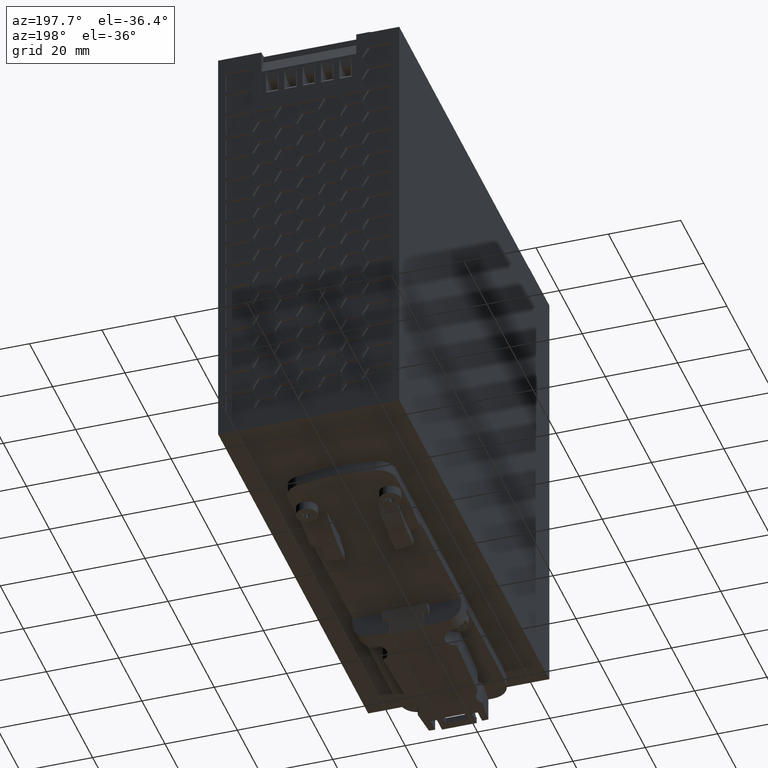
[diagram: clean part render]
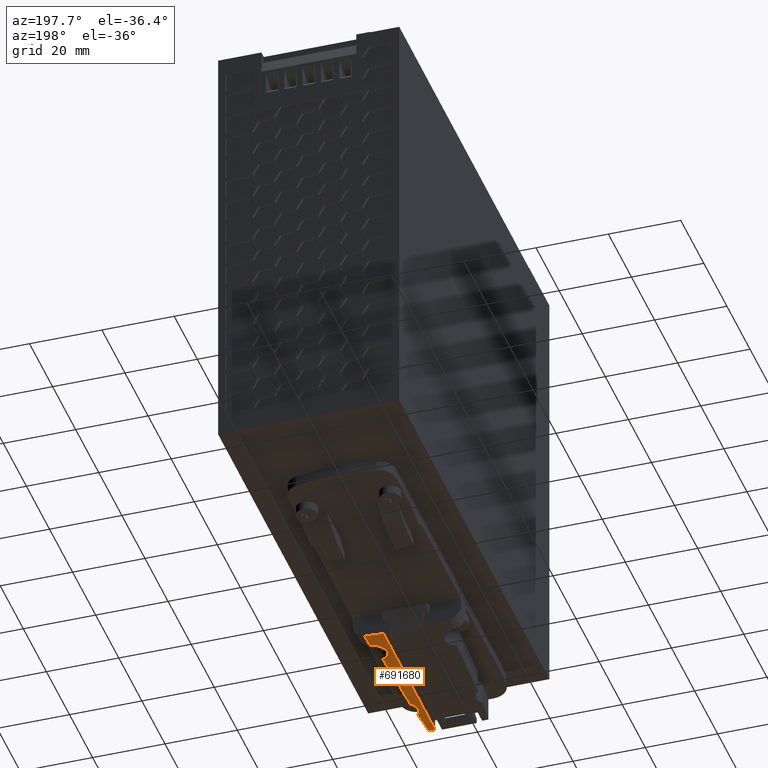
[diagram: same view with one face highlighted and labeled with its STEP entity id]
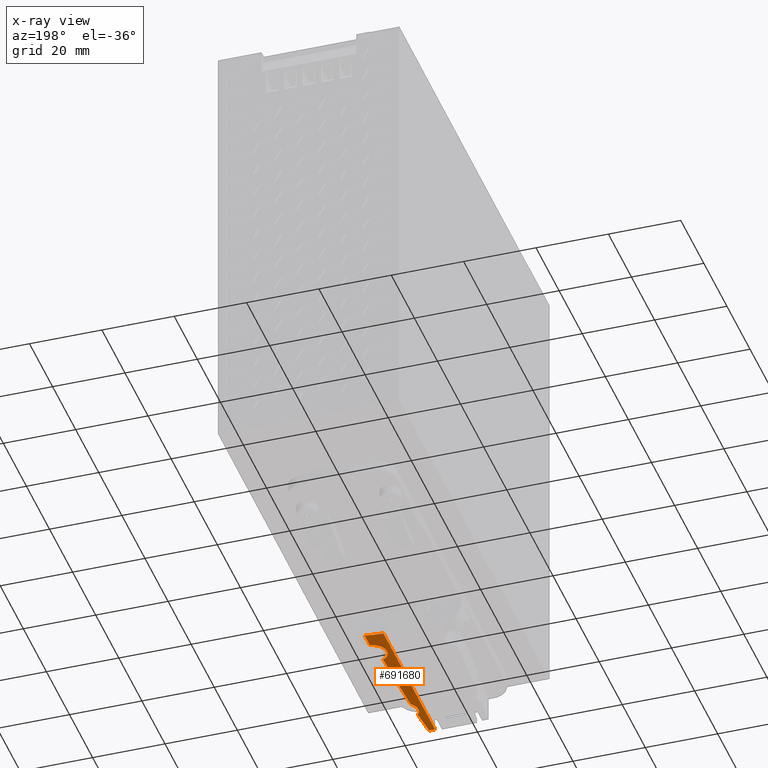
[diagram: x-ray of the same camera — body ghosted, the highlighted face saturated]
A machine part, auxiliary view. The second image highlights one B-rep face of the part: STEP entity #691680.
The next image is the same camera in x-ray: the body ghosted, the highlighted face saturated — about 0% of this face is hidden behind the body in this view.
In plain terms, the highlighted cylindrical surface (partial cylindrical patch) has radius 30 mm, axis along (0, -1, -0).
Its self-contained STEP definition (entity closure, byte-faithful):
#673430=CARTESIAN_POINT('',(17.4402924792435,-9.69999999999984,
84.1510932410561));
#673440=VERTEX_POINT('',#673430);
#673470=CARTESIAN_POINT('',(17.4402924792435,20.3000000000002,
84.1510932410561));
#673480=DIRECTION('',(1.37468202359202E-5,1.32377063662335E-39,
0.999999999905512));
#673490=DIRECTION('',(0.999999999905512,-9.09881806515498E-45,
-1.37468202359202E-5));
#673500=AXIS2_PLACEMENT_3D('',#673470,#673480,#673490);
#673510=CIRCLE('',#673500,30.);
#673520=CARTESIAN_POINT('',(22.6326001710606,-9.24724929377342,
84.1510218633356));
#673530=VERTEX_POINT('',#673520);
#673540=EDGE_CURVE('',#673440,#673530,#673510,.T.);
#689910=CARTESIAN_POINT('',(19.1573927849674,-9.65085447025208,
129.001069640625));
#689920=VERTEX_POINT('',#689910);
#689950=CARTESIAN_POINT('',(17.4409090241311,20.3000000000002,
129.001093236818));
#689960=DIRECTION('',(1.37468202359202E-5,1.32377063662335E-39,
0.999999999905512));
#689970=DIRECTION('',(0.999999999905512,-9.09881806515498E-45,
-1.37468202359202E-5));
#689980=AXIS2_PLACEMENT_3D('',#689950,#689960,#689970);
#689990=CIRCLE('',#689980,30.);
#690000=CARTESIAN_POINT('',(17.4409090241311,-9.69999999999984,
129.001093236818));
#690010=VERTEX_POINT('',#690000);
#690020=EDGE_CURVE('',#690010,#689920,#689990,.T.);
#690280=CARTESIAN_POINT('',(17.4402924792435,20.3000000000002,
84.1510932410561));
#690290=DIRECTION('',(1.37468202359202E-5,1.32377063662335E-39,
0.999999999905512));
#690300=DIRECTION('',(0.999999999905512,-9.09881806515498E-45,
-1.37468202359202E-5));
#690310=AXIS2_PLACEMENT_3D('',#690280,#690290,#690300);
#690320=CYLINDRICAL_SURFACE('',#690310,30.);
#690330=ORIENTED_EDGE('',*,*,#690020,.F.);
#690340=CARTESIAN_POINT('',(-380.259652495898,-3.0999999999999,
88.156560351086));
#690350=DIRECTION('',(9.09881891095558E-45,-1.,1.32377063662335E-39));
#690360=DIRECTION('',(-1.37468202359202E-5,-1.32377063662335E-39,
-0.999999999905512));
#690370=AXIS2_PLACEMENT_3D('',#690340,#690350,#690360);
#690380=CYLINDRICAL_SURFACE('',#690370,401.5);
#690390=CARTESIAN_POINT('',(19.8527982263077,-9.60288102418703,
121.507374090337));
#690400=CARTESIAN_POINT('',(19.8006999194526,-9.6070840116754,
122.132401755246));
#690410=CARTESIAN_POINT('',(19.7471372658763,-9.61126813362171,
122.757304670079));
#690420=CARTESIAN_POINT('',(19.6921111960363,-9.61540975810916,
123.382072692423));
#690430=CARTESIAN_POINT('',(19.6370851261882,-9.61955138259722,
124.006840714859));
#690440=CARTESIAN_POINT('',(19.5805956401027,-9.62365050926288,
124.63147384467));
#690450=CARTESIAN_POINT('',(19.522643760876,-9.62768227136417,
125.255961958914));
#690460=CARTESIAN_POINT('',(19.4646918816423,-9.63171403346595,
125.880450073234));
#690470=CARTESIAN_POINT('',(19.4052776092794,-9.63567843067104,
126.504793172018));
#690480=CARTESIAN_POINT('',(19.3444020593547,-9.63954936686504,
127.128981150951));
#690490=CARTESIAN_POINT('',(19.2835265094321,-9.64342030305891,
127.753169129863));
#690500=CARTESIAN_POINT('',(19.2211896819438,-9.64719777796471,
128.377201989093));
#690510=CARTESIAN_POINT('',(19.1573927849677,-9.65085447025247,
129.001069640621));
#690520=B_SPLINE_CURVE_WITH_KNOTS('',3,(#690390,#690400,#690410,#690420,
#690430,#690440,#690450,#690460,#690470,#690480,#690490,#690500,#690510)
,.UNSPECIFIED.,.F.,.F.,(4,3,3,3,4),(0.,1.88161596020837,3.76319436599583
,5.64471458202427,7.52615607690601),.UNSPECIFIED.);
#690530=SURFACE_CURVE('',#690520,(#690320,#690380),.CURVE_3D.);
#690540=CARTESIAN_POINT('',(19.8527982263082,-9.60288102418034,
121.507374090338));
#690550=VERTEX_POINT('',#690540);
#690560=EDGE_CURVE('',#690550,#689920,#690530,.T.);
#690570=ORIENTED_EDGE('',*,*,#690560,.T.);
#690580=CARTESIAN_POINT('',(22.4407736174793,-3.09999999999985,
119.151024503648));
#690590=DIRECTION('',(9.09881891095558E-45,-1.,1.32377063662335E-39));
#690600=DIRECTION('',(0.999999999905512,-9.09881806515498E-45,
-1.37468202359202E-5));
#690610=AXIS2_PLACEMENT_3D('',#690580,#690590,#690600);
#690620=CYLINDRICAL_SURFACE('',#690610,3.5);
#690630=CARTESIAN_POINT('',(19.8527982263082,-9.60288102418046,
121.507374090338));
#690640=CARTESIAN_POINT('',(19.5331168278246,-9.62866641263855,
121.156268466213));
#690650=CARTESIAN_POINT('',(19.2857561713809,-9.64361997060808,
120.740182141791));
#690660=CARTESIAN_POINT('',(19.1302506474801,-9.65239089170769,
120.286998827789));
#690670=CARTESIAN_POINT('',(18.9758338450306,-9.66110040605012,
119.836988329665));
#690680=CARTESIAN_POINT('',(18.9147408490969,-9.66379053106371,
119.358413646861));
#690690=CARTESIAN_POINT('',(18.9509373216708,-9.66196579864018,
118.884486272886));
#690700=CARTESIAN_POINT('',(18.9873856133439,-9.66012837154111,
118.407261783035));
#690710=CARTESIAN_POINT('',(19.1225138541487,-9.65364315802918,
117.940922780172));
#690720=CARTESIAN_POINT('',(19.3435223739164,-9.63959688932203,
117.520983174648));
#690730=CARTESIAN_POINT('',(19.5665355695714,-9.62542321278367,
117.097234472523));
#690740=CARTESIAN_POINT('',(19.8748473470081,-9.60338606038583,
116.723942419355));
#690750=CARTESIAN_POINT('',(20.2438633892926,-9.56875420484563,
116.426398758835));
#690760=B_SPLINE_CURVE_WITH_KNOTS('',3,(#690630,#690640,#690650,#690660,
#690670,#690680,#690690,#690700,#690710,#690720,#690730,#690740,#690750)
,.UNSPECIFIED.,.F.,.F.,(4,3,3,3,4),(0.,1.42905439128156,2.85283973389681
,4.28184927705029,5.71087819009122),.UNSPECIFIED.);
#690770=SURFACE_CURVE('',#690760,(#690320,#690620),.CURVE_3D.);
#690780=CARTESIAN_POINT('',(20.2438633892932,-9.56875420484524,
116.426398758836));
#690790=VERTEX_POINT('',#690780);
#690800=EDGE_CURVE('',#690550,#690790,#690770,.T.);
#690810=ORIENTED_EDGE('',*,*,#690800,.F.);
#690820=CARTESIAN_POINT('',(-380.259652495898,-3.0999999999999,
88.156560351086));
#690830=DIRECTION('',(9.09881891095558E-45,-1.,1.32377063662335E-39));
#690840=DIRECTION('',(-1.37468202359202E-5,-1.32377063662335E-39,
-0.999999999905512));
#690850=AXIS2_PLACEMENT_3D('',#690820,#690830,#690840);
#690860=CYLINDRICAL_SURFACE('',#690850,401.5);
#690870=CARTESIAN_POINT('',(21.1747470105555,-9.46667609516908,
95.4141696608264));
#690880=CARTESIAN_POINT('',(21.14306109759,-9.4706541901726,
97.1667874859644));
#690890=CARTESIAN_POINT('',(21.0998974083524,-9.4760274255901,
98.9191954383908));
#690900=CARTESIAN_POINT('',(21.045260284654,-9.48264334216385,
100.671230869743));
#690910=CARTESIAN_POINT('',(20.9906225835377,-9.48925932865614,
102.423284817012));
#690920=CARTESIAN_POINT('',(20.9245087022699,-9.49711826358038,
104.175037623851));
#690930=CARTESIAN_POINT('',(20.8469264288636,-9.50598739389538,
105.926263310735));
#690940=CARTESIAN_POINT('',(20.769343729314,-9.51485657292666,
107.677498616736));
#690950=CARTESIAN_POINT('',(20.6802948692413,-9.52473561714494,
109.42816520607));
#690960=CARTESIAN_POINT('',(20.5797869034915,-9.53531309531287,
111.178155039189));
#690970=CARTESIAN_POINT('',(20.4792769002984,-9.54589078790172,
112.928180347156));
#690980=CARTESIAN_POINT('',(20.3672987662792,-9.557167767417,
114.677669185134));
#690990=CARTESIAN_POINT('',(20.2438633892932,-9.56875420484554,
116.426398758839));
#691000=B_SPLINE_CURVE_WITH_KNOTS('',3,(#690870,#690880,#690890,#690900,
#690910,#690920,#690930,#690940,#690950,#690960,#690970,#690980,#690990)
,.UNSPECIFIED.,.F.,.F.,(4,3,3,3,4),(0.,5.2587179868474,10.5175815892292,
15.776382571854,21.035509994096),.UNSPECIFIED.);
#691010=SURFACE_CURVE('',#691000,(#690320,#690860),.CURVE_3D.);
#691020=CARTESIAN_POINT('',(21.1747470105559,-9.4666760951657,
95.4141696608265));
#691030=VERTEX_POINT('',#691020);
#691040=EDGE_CURVE('',#691030,#690790,#691010,.T.);
#691050=ORIENTED_EDGE('',*,*,#691040,.T.);
#691060=CARTESIAN_POINT('',(22.4404024533329,-3.09999999999985,
92.151024506199));
#691070=DIRECTION('',(9.09881891095558E-45,-1.,1.32377063662335E-39));
#691080=DIRECTION('',(0.999999999905512,-9.09881806515498E-45,
-1.37468202359202E-5));
#691090=AXIS2_PLACEMENT_3D('',#691060,#691070,#691080);
#691100=CYLINDRICAL_SURFACE('',#691090,3.5);
#691110=CARTESIAN_POINT('',(21.174747010556,-9.46667609516569,
95.4141696608265));
#691120=CARTESIAN_POINT('',(20.7904451399597,-9.51488741386857,
95.2651129283977));
#691130=CARTESIAN_POINT('',(20.4365938678975,-9.55164070014017,
95.0504095807536));
#691140=CARTESIAN_POINT('',(20.1257904395363,-9.57957304238252,
94.7763951896641));
#691150=CARTESIAN_POINT('',(19.8143529267983,-9.60756237068167,
94.5018217692056));
#691160=CARTESIAN_POINT('',(19.5558939624159,-9.62596697810919,
94.1760438338561));
#691170=CARTESIAN_POINT('',(19.3596039637464,-9.63854961752515,
93.8119521586154));
#691180=CARTESIAN_POINT('',(18.9782125763446,-9.66299768078135,
93.1045221820362));
#691190=CARTESIAN_POINT('',(18.8523307398012,-9.66712914344179,
92.2866490121226));
#691200=CARTESIAN_POINT('',(19.0016676521557,-9.65934617095079,
91.499025298245));
#691210=CARTESIAN_POINT('',(19.151311916835,-9.65154718021854,
90.7097805653196));
#691220=CARTESIAN_POINT('',(19.5713533988327,-9.63049825797312,
89.99298434787));
#691230=CARTESIAN_POINT('',(20.1818101963643,-9.57447877474151,
89.4773078015415));
#691240=CARTESIAN_POINT('',(20.4978370353264,-9.54547809807191,
89.2103476668979));
#691250=CARTESIAN_POINT('',(20.861188080664,-9.50683257974118,
89.0010340146225));
#691260=CARTESIAN_POINT('',(21.2445107034178,-9.4578294972818,
88.8616715420909));
#691270=CARTESIAN_POINT('',(21.6291641469389,-9.40865628575639,
88.7218252304598));
#691280=CARTESIAN_POINT('',(22.0348776563814,-9.34893403224274,
88.6510543377072));
#691290=CARTESIAN_POINT('',(22.4401449019439,-9.28043431618564,
88.6510245156674));
#691300=B_SPLINE_CURVE_WITH_KNOTS('',3,(#691110,#691120,#691130,#691140,
#691150,#691160,#691170,#691180,#691190,#691200,#691210,#691220,#691230,
#691240,#691250,#691260,#691270,#691280,#691290),.UNSPECIFIED.,.F.,.F.,(
4,3,3,3,3,3,4),(0.,1.23928390105495,2.47894669673722,4.86560860602105,
7.25439560188892,8.49455414880311,9.7277176641783),.UNSPECIFIED.);
#691310=SURFACE_CURVE('',#691300,(#690320,#691100),.CURVE_3D.);
#691320=CARTESIAN_POINT('',(22.4401449019442,-9.28043431618559,
88.6510245156674));
#691330=VERTEX_POINT('',#691320);
#691340=EDGE_CURVE('',#691030,#691330,#691310,.T.);
#691350=ORIENTED_EDGE('',*,*,#691340,.F.);
#691360=CARTESIAN_POINT('',(17.4403543399346,20.3000000000002,
88.6510932406309));
#691370=DIRECTION('',(1.37468202359202E-5,1.32377063662335E-39,
0.999999999905512));
#691380=DIRECTION('',(0.999999999905512,-9.09881806515498E-45,
-1.37468202359202E-5));
#691390=AXIS2_PLACEMENT_3D('',#691360,#691370,#691380);
#691400=CIRCLE('',#691390,30.);
#691410=CARTESIAN_POINT('',(22.6326620317516,-9.24724929377342,
88.6510218629104));
#691420=VERTEX_POINT('',#691410);
#691430=EDGE_CURVE('',#691330,#691420,#691400,.T.);
#691440=ORIENTED_EDGE('',*,*,#691430,.F.);
#691450=CARTESIAN_POINT('',(22.6326001710606,-9.24724929377342,
84.1510218633356));
#691460=DIRECTION('',(1.37468202359202E-5,1.32377063662335E-39,
0.999999999905512));
#691470=VECTOR('',#691460,1.);
#691480=LINE('',#691450,#691470);
#691490=EDGE_CURVE('',#673530,#691420,#691480,.T.);
#691500=ORIENTED_EDGE('',*,*,#691490,.T.);
#691510=ORIENTED_EDGE('',*,*,#673540,.T.);
#691520=CARTESIAN_POINT('',(17.4402924792435,-9.69999999999984,
84.1510932410561));
#691530=DIRECTION('',(1.37468202359202E-5,1.32377063662335E-39,
0.999999999905512));
#691540=VECTOR('',#691530,1.);
#691550=LINE('',#691520,#691540);
#691560=CARTESIAN_POINT('',(17.4408554115321,-9.69999999999984,
125.101093237187));
#691570=VERTEX_POINT('',#691560);
#691580=EDGE_CURVE('',#673440,#691570,#691550,.T.);
#691590=ORIENTED_EDGE('',*,*,#691580,.F.);
#691600=CARTESIAN_POINT('',(17.4402924792435,-9.69999999999984,
84.1510932410561));
#691610=DIRECTION('',(1.37468202359202E-5,1.32377063662335E-39,
0.999999999905512));
#691620=VECTOR('',#691610,1.);
#691630=LINE('',#691600,#691620);
#691640=EDGE_CURVE('',#691570,#690010,#691630,.T.);
#691650=ORIENTED_EDGE('',*,*,#691640,.F.);
#691660=EDGE_LOOP('',(#691650,#691590,#691510,#691500,#691440,#691350,
#691050,#690810,#690570,#690330));
#691670=FACE_OUTER_BOUND('',#691660,.T.);
#691680=ADVANCED_FACE('',(#691670),#690320,.T.);